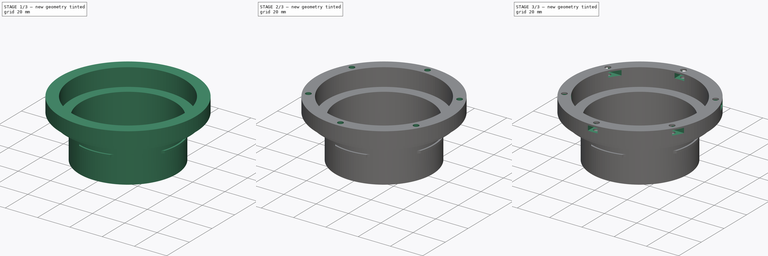
[diagram: build sequence overview — one tinted view per stage of 3, left to right]
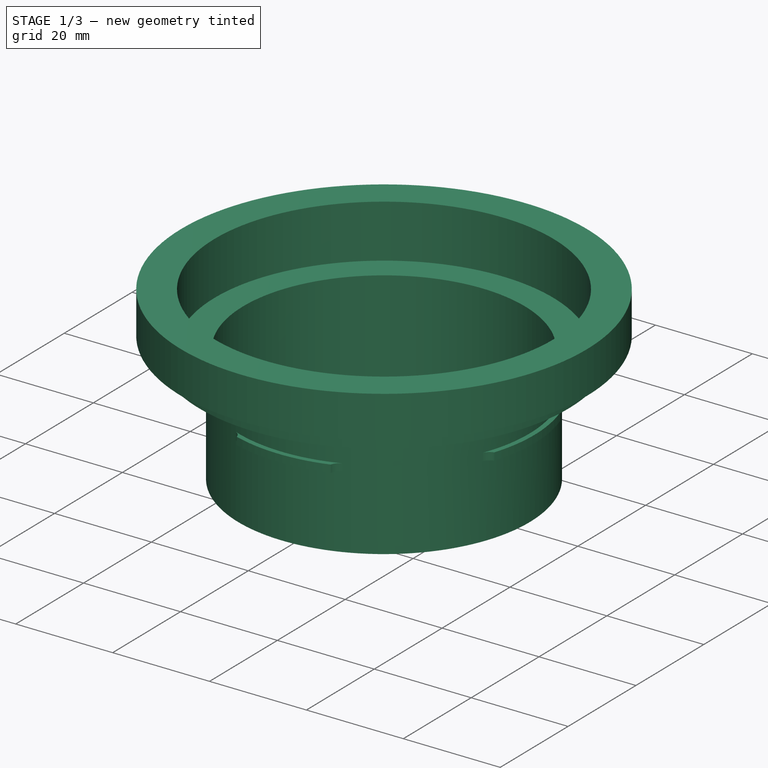
[diagram: stage 1 of 3 — iso view after this stage's code; geometry added in this stage tinted green]
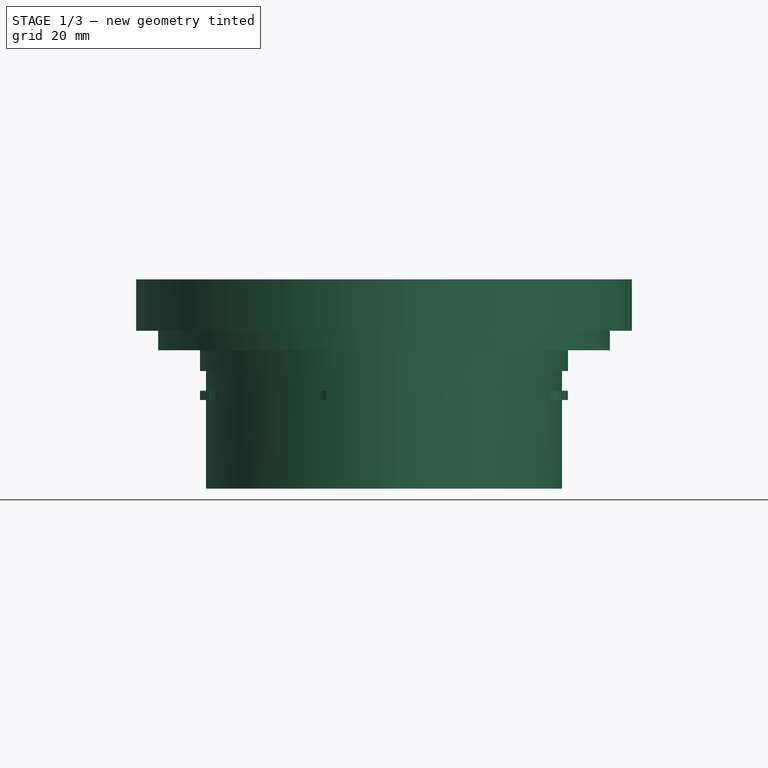
[diagram: stage 1 of 3 — front view after this stage's code; geometry added in this stage tinted green]
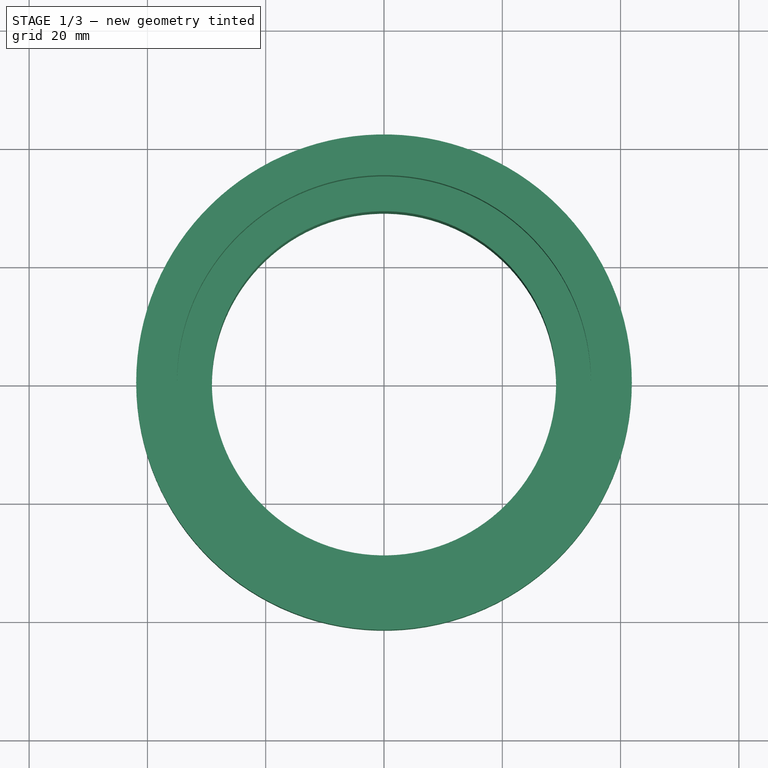
[diagram: stage 1 of 3 — top view after this stage's code; geometry added in this stage tinted green]
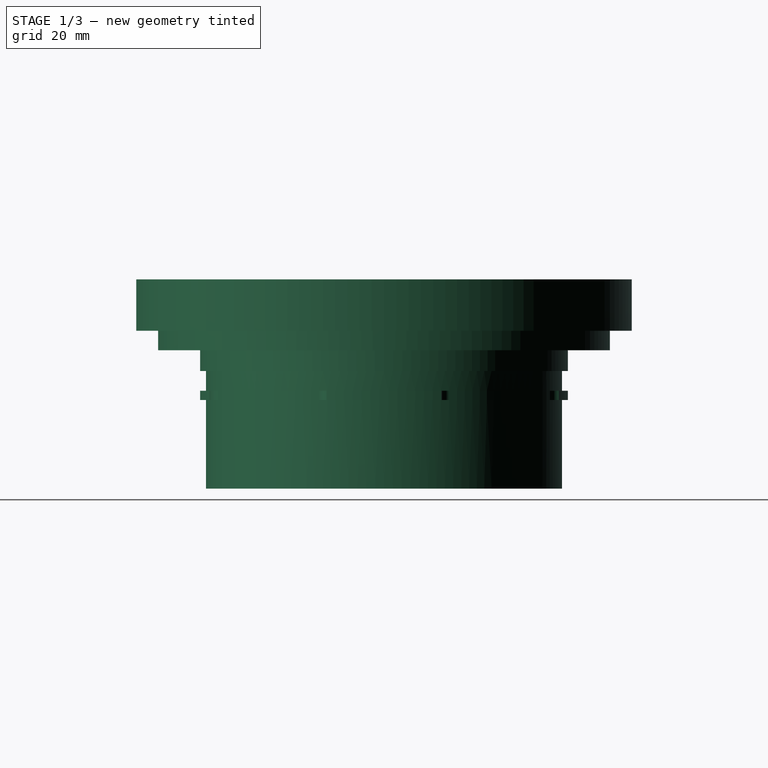
[diagram: stage 1 of 3 — right view after this stage's code; geometry added in this stage tinted green]
FCSTD DOCUMENT  (FreeCAD 1.1R44874 (Git))
Label: Rollei SL66 - Schneider Xenon 125mm F2
License: All rights reserved
LicenseURL: http://en.wikipedia.org/wiki/All_rights_reserved
objects: Sketcher::SketchObject×6, PartDesign::Pocket×4, PartDesign::Revolution×1, App::Point×1, PartDesign::Hole×1, PartDesign::Body×1
note: 31 computed .brp shape members not serialized (recipe doc carries the construction recipe); baked Part::Feature solids carry a one-line shape summary decoded from their .brp

FEATURE [Sketcher::SketchObject] Sketch
  ArcFitTolerance = 0
  AttachmentSupport = -> [XZ_Plane]
  ExternalTypes = [0]
  FullyConstrained = true
  MakeInternals = false
  MapMode = 5
  Placement = pos=(0,0,0) rot=(1,0,0;1.5708rad)
  _ExternalGeoVersion = 0
  sketch-geometry (18):
    g0: LineSegment StartX=-31.1 StartY=0 StartZ=0 EndX=-31.1 EndY=1.55 EndZ=0
    g1: LineSegment StartX=-31.1 StartY=1.55 StartZ=0 EndX=-30.1 EndY=1.55 EndZ=0
    g2: LineSegment StartX=-30.1 StartY=1.55 StartZ=0 EndX=-30.1 EndY=4.9 EndZ=0
    g3: LineSegment StartX=-30.1 StartY=4.9 StartZ=0 EndX=-31.1 EndY=4.9 EndZ=0
    g4: LineSegment StartX=-31.1 StartY=4.9 StartZ=0 EndX=-31.1 EndY=8.4 EndZ=0
    g5: LineSegment StartX=-31.1 StartY=8.4 StartZ=0 EndX=-38.2 EndY=8.4 EndZ=0
    g6: LineSegment StartX=-38.2 StartY=8.4 StartZ=0 EndX=-38.2 EndY=13.4 EndZ=0
    g7: LineSegment StartX=-38.2 StartY=13.4 StartZ=0 EndX=-40.9 EndY=13.4 EndZ=0
    g8: LineSegment StartX=-40.9 StartY=13.4 StartZ=0 EndX=-40.9 EndY=11.7 EndZ=0
    g9: LineSegment StartX=-40.9 StartY=11.7 StartZ=0 EndX=-41.9 EndY=11.7 EndZ=0
    g10: LineSegment StartX=-41.9 StartY=11.7 StartZ=0 EndX=-41.9 EndY=20.4 EndZ=0
    g11: LineSegment StartX=-29.1 StartY=-15 StartZ=0 EndX=-29.1 EndY=9.4 EndZ=0
    g12: LineSegment StartX=-29.1 StartY=9.4 StartZ=0 EndX=-35 EndY=9.4 EndZ=0
    g13: LineSegment StartX=-35 StartY=9.4 StartZ=0 EndX=-35 EndY=20.4 EndZ=0
    g14: LineSegment StartX=-41.9 StartY=20.4 StartZ=0 EndX=-35 EndY=20.4 EndZ=0
    g15: LineSegment StartX=-31.1 StartY=0 StartZ=0 EndX=-30.1 EndY=0 EndZ=0
    g16: LineSegment StartX=-30.1 StartY=0 StartZ=0 EndX=-30.1 EndY=-15 EndZ=0
    g17: LineSegment StartX=-30.1 StartY=-15 StartZ=0 EndX=-29.1 EndY=-15 EndZ=0
  constraints (54):
    c: Coincident(g1,g0)
    c: Coincident(g2,g1)
    c: Coincident(g3,g2)
    c: Coincident(g4,g3)
    c: Coincident(g5,g4)
    c: Coincident(g5,g6)
    c: DistanceX(g0,g1) = 1
    c: DistanceY(g0,g0) = 1.55
    c: DistanceY(g1,g2) = 3.35
    c: Vertical(g2)
    c: Vertical(g0)
    c: Vertical(g4)
    c: Horizontal(g1)
    c: Equal(g3,g1)
    c: Horizontal(g5)
    c: DistanceX(g5,g4) = 7.1
    c: Vertical(g6)
    c: DistanceY(g5,g6) = 5
    c: Horizontal(g3)
    c: DistanceY(g3,g4) = 3.5
    c: DistanceX(g1,g-1) = 30.1
    c: Coincident(g7,g6)
    c: Horizontal(g7)
    c: Coincident(g8,g7)
    c: Vertical(g8)
    c: Coincident(g9,g8)
    c: Horizontal(g9)
    c: Vertical(g10)
    c: Coincident(g9,g10)
    c: DistanceX(g9,g9) = 1
    c: DistanceX(g7,g7) = 2.7
    c: DistanceY(g5,g8) = 3.3
    c: DistanceY(g7,g10) = 7
    c: DistanceX(g11,g-1) = 29.1
    c: Vertical(g11)
    c: Coincident(g12,g11)
    c: Horizontal(g12)
    c: Vertical(g13)
    c: DistanceY(g4,g11) = 1
    c: Coincident(g12,g13)
    c: DistanceX(g13,g-1) = 35
    c: Coincident(g14,g10)
    c: Horizontal(g14)
    c: Coincident(g14,g13)
    c: Coincident(g15,g0)
    c: PointOnObject(g15,g-1)
    c: Horizontal(g15)
    c: Vertical(g15,g1)
    c: Coincident(g16,g15)
    c: Vertical(g16)
    c: Coincident(g17,g16)
    c: Horizontal(g17)
    c: Coincident(g17,g11)
    c: DistanceY(g16,g16) = 15
FEATURE [PartDesign::Revolution] Revolution
  Angle = 360
  Angle2 = 60
  Axis = (0,2e-16,1)
  Base = (0,0,0)
  FuseOrder = 1
  Placement = pos=(0,0,0) rot=(1,0,0;1.5708rad)
  Profile = -> Sketch
  ReferenceAxis = -> Sketch [V_Axis]
  Suppressed = false
  Type = 0
FEATURE [Sketcher::SketchObject] Sketch001
  ArcFitTolerance = 0
  AttachmentSupport = -> [Revolution]
  ExternalGeometry = -> [Revolution]
  ExternalTypes = [0]
  FullyConstrained = true
  MakeInternals = false
  MapMode = 5
  Placement = pos=(0,0,0) rot=(1,0,0;3.14159rad)
  _ExternalGeoVersion = 0
  sketch-geometry (16):
    g0: ArcOfCircle CenterX=11.9 CenterY=30.0998 CenterZ=0 NormalX=0 NormalY=0 NormalZ=1 AngleXU=0 Radius=2.268 StartAngle=3.38709 EndAngle=4.30433
    g1: ArcOfCircle CenterX=30.0998 CenterY=11.9 CenterZ=0 NormalX=0 NormalY=0 NormalZ=1 AngleXU=0 Radius=2.268 StartAngle=3.54965 EndAngle=4.46689
    g2: ArcOfCircle CenterX=0 CenterY=0 CenterZ=0 NormalX=0 NormalY=0 NormalZ=1 AngleXU=0 Radius=30.1 StartAngle=0.374115 EndAngle=1.19668
    g3: ArcOfCircle CenterX=0 CenterY=0 CenterZ=0 NormalX=0 NormalY=0 NormalZ=1 AngleXU=0 Radius=31.1 StartAngle=0.317189 EndAngle=1.25361
    g4: ArcOfCircle CenterX=0 CenterY=0 CenterZ=0 NormalX=0 NormalY=0 NormalZ=1 AngleXU=0 Radius=30.1 StartAngle=1.94491 EndAngle=2.76748
    g5: ArcOfCircle CenterX=0 CenterY=0 CenterZ=0 NormalX=0 NormalY=0 NormalZ=1 AngleXU=0 Radius=31.1 StartAngle=1.88799 EndAngle=2.8244
    g6: ArcOfCircle CenterX=-30.0998 CenterY=11.9 CenterZ=0 NormalX=0 NormalY=0 NormalZ=1 AngleXU=0 Radius=2.268 StartAngle=4.95789 EndAngle=5.87513
    g7: ArcOfCircle CenterX=-11.9 CenterY=30.0998 CenterZ=0 NormalX=0 NormalY=0 NormalZ=1 AngleXU=0 Radius=2.268 StartAngle=5.12044 EndAngle=6.03769
    g8: ArcOfCircle CenterX=0 CenterY=0 CenterZ=0 NormalX=0 NormalY=0 NormalZ=1 AngleXU=0 Radius=30.1 StartAngle=3.51571 EndAngle=4.33827
    g9: ArcOfCircle CenterX=0 CenterY=0 CenterZ=0 NormalX=0 NormalY=0 NormalZ=1 AngleXU=0 Radius=31.1 StartAngle=3.45878 EndAngle=4.3952
    g10: ArcOfCircle CenterX=-11.9 CenterY=-30.0998 CenterZ=0 NormalX=0 NormalY=0 NormalZ=1 AngleXU=0 Radius=2.268 StartAngle=0.245497 EndAngle=1.16274
    g11: ArcOfCircle CenterX=-30.0998 CenterY=-11.9 CenterZ=0 NormalX=0 NormalY=0 NormalZ=1 AngleXU=0 Radius=2.268 StartAngle=0.408055 EndAngle=1.3253
    g12: ArcOfCircle CenterX=0 CenterY=0 CenterZ=0 NormalX=0 NormalY=0 NormalZ=1 AngleXU=0 Radius=30.1 StartAngle=5.0865 EndAngle=5.90907
    g13: ArcOfCircle CenterX=0 CenterY=0 CenterZ=0 NormalX=0 NormalY=0 NormalZ=1 AngleXU=0 Radius=31.1 StartAngle=5.02958 EndAngle=5.966
    g14: ArcOfCircle CenterX=11.9 CenterY=-30.0998 CenterZ=0 NormalX=0 NormalY=0 NormalZ=1 AngleXU=0 Radius=2.268 StartAngle=1.97885 EndAngle=2.8961
    g15: ArcOfCircle CenterX=30.0998 CenterY=-11.9 CenterZ=0 NormalX=0 NormalY=0 NormalZ=1 AngleXU=0 Radius=2.268 StartAngle=1.81629 EndAngle=2.73354
  constraints (44):
    c: DistanceX(g-1,g0) = 9.7
    c: DistanceX(g-1,g0) = 11
    c: DistanceX(g-1,g0) = 11.9
    c: PointOnObject(g1,g-3)
    c: DistanceY(g-1,g1) = 9.7
    c: DistanceY(g-1,g1) = 11
    c: DistanceY(g-1,g1) = 11.9
    c: Coincident(g2,g0)
    c: Coincident(g2,g1)
    c: Coincident(g3,g0)
    c: Coincident(g3,g1)
    c: Coincident(g3,g2)
    c: PointOnObject(g0,g-4)
    c: Coincident(g4,g7)
    c: Coincident(g4,g6)
    c: Coincident(g5,g7)
    c: Coincident(g5,g6)
    c: Coincident(g5,g4)
    c: Coincident(g12,g14)
    c: Coincident(g12,g15)
    c: Coincident(g13,g14)
    c: Coincident(g13,g15)
    c: Coincident(g13,g12)
    c: Coincident(g8,g10)
    c: Coincident(g8,g11)
    c: Coincident(g9,g10)
    c: Coincident(g9,g11)
    c: Coincident(g9,g8)
    c: Symmetric(g0,g7,g-2)
    c: Symmetric(g5,g0,g-2)
    c: Symmetric(g1,g6,g-2)
    c: Symmetric(g4,g1,g-2)
    c: Symmetric(g15,g1,g-1)
    c: Symmetric(g12,g1,g-1)
    c: Symmetric(g9,g5,g-1)
    c: Symmetric(g10,g7,g-1)
    c: Symmetric(g9,g13,g-2)
    c: Symmetric(g10,g14,g-2)
    c: Symmetric(g11,g15,g-2)
    c: Symmetric(g8,g12,g-2)
    c: Coincident(g2,g4)
    c: Coincident(g2,g8)
    c: Coincident(g2,g12)
    c: Coincident(g2,g-4)
FEATURE [PartDesign::Pocket] Pocket  label="cut outs first ring"
  BaseFeature = -> Revolution
  Direction = (0,0,1)
  Length = 1.55
  Length2 = 100
  Placement = pos=(0,0,0) rot=(1,0,0;1.5708rad)
  Profile = -> Sketch001
  SideType = 0
  Suppressed = false
  Type = 0
  Type2 = 0
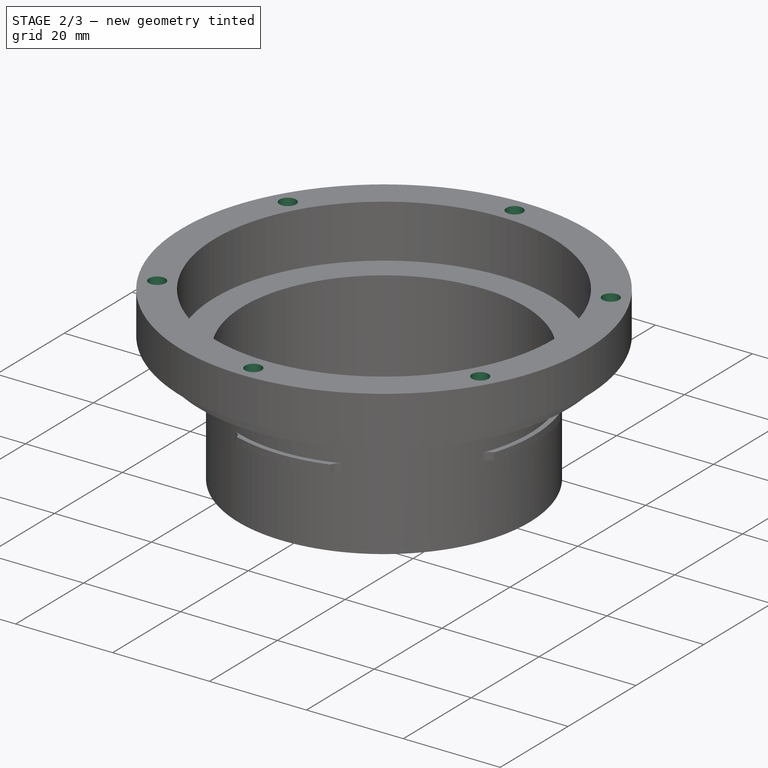
[diagram: stage 2 of 3 — iso view after this stage's code; geometry added in this stage tinted green]
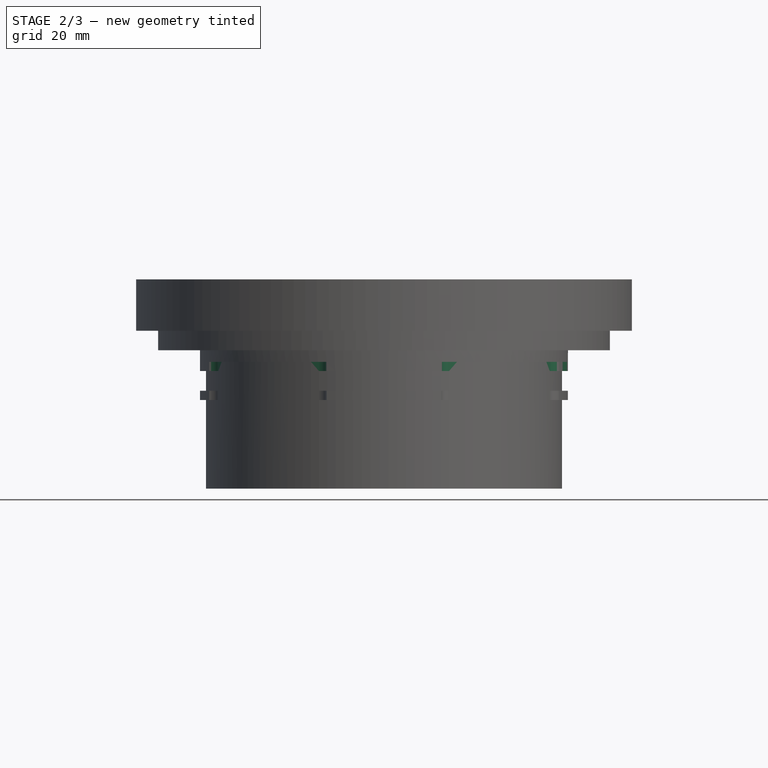
[diagram: stage 2 of 3 — front view after this stage's code; geometry added in this stage tinted green]
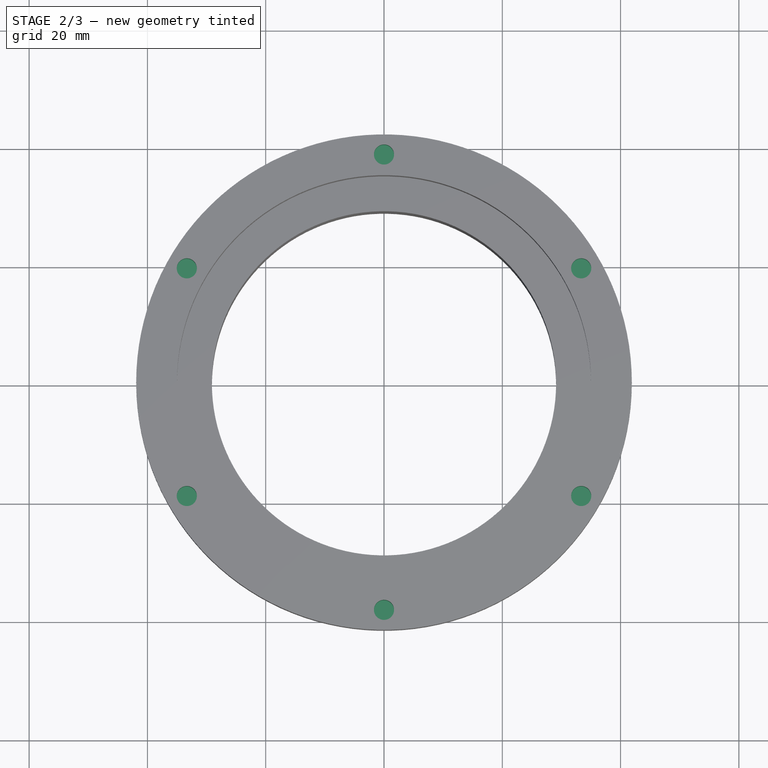
[diagram: stage 2 of 3 — top view after this stage's code; geometry added in this stage tinted green]
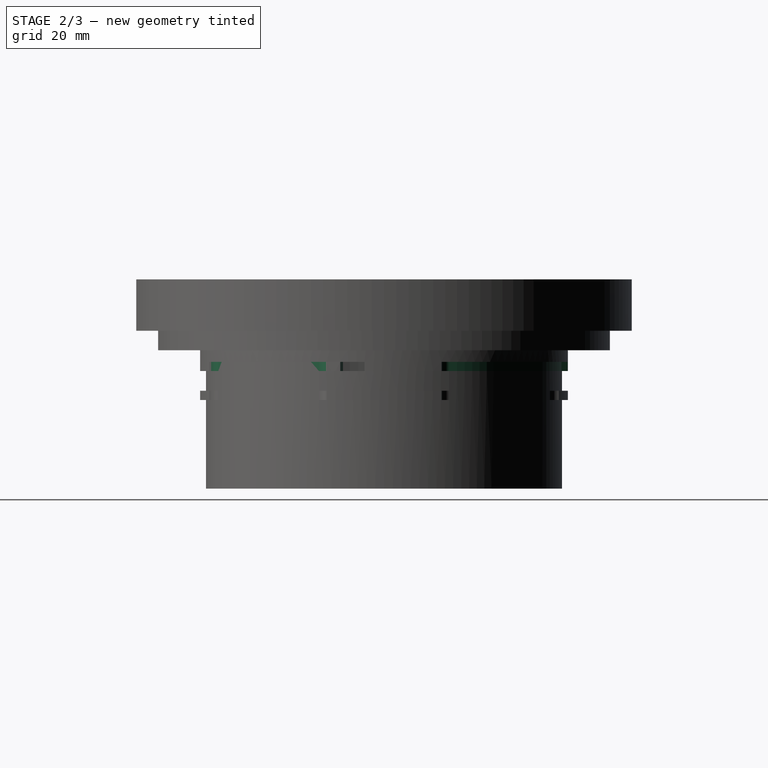
[diagram: stage 2 of 3 — right view after this stage's code; geometry added in this stage tinted green]
FEATURE [Sketcher::SketchObject] Sketch002
  ArcFitTolerance = 0
  AttachmentSupport = -> [Pocket]
  ExternalGeometry = -> [Pocket]
  ExternalTypes = [0]
  FullyConstrained = true
  MakeInternals = false
  MapMode = 5
  Placement = pos=(0,1.1e-15,4.9) rot=(1,0,0;3.14159rad)
  _ExternalGeoVersion = 0
  sketch-geometry (20):
    g0: ArcOfCircle CenterX=-2.4e-15 CenterY=-6.6e-15 CenterZ=0 NormalX=0 NormalY=0 NormalZ=1 AngleXU=0 Radius=30.1 StartAngle=0.374115 EndAngle=1.19668
    g1: ArcOfCircle CenterX=30.0998 CenterY=11.9 CenterZ=0 NormalX=0 NormalY=0 NormalZ=1 AngleXU=0 Radius=2.268 StartAngle=3.54965 EndAngle=4.46689
    g2: ArcOfCircle CenterX=11.9 CenterY=30.0998 CenterZ=0 NormalX=0 NormalY=0 NormalZ=1 AngleXU=0 Radius=2.268 StartAngle=3.38709 EndAngle=4.30433
    g3: ArcOfCircle CenterX=-2.4e-15 CenterY=-6.6e-15 CenterZ=0 NormalX=0 NormalY=0 NormalZ=1 AngleXU=0 Radius=31.1 StartAngle=0.317189 EndAngle=1.25361
    g4: ArcOfCircle CenterX=-2.4e-15 CenterY=-6.6e-15 CenterZ=0 NormalX=0 NormalY=0 NormalZ=1 AngleXU=0 Radius=31.1 StartAngle=0.106309 EndAngle=0.240247
    g5: LineSegment StartX=30.2068 StartY=7.4 StartZ=0 EndX=27.9728 EndY=6.85273 EndZ=0
    g6: LineSegment StartX=30.9244 StartY=3.3 StartZ=0 EndX=28.6374 EndY=3.05595 EndZ=0
    g7: LineSegment StartX=28.6374 StartY=3.05595 StartZ=0 EndX=27.9728 EndY=6.85273 EndZ=0
    g8: ArcOfCircle CenterX=30.0998 CenterY=-11.9 CenterZ=0 NormalX=0 NormalY=0 NormalZ=1 AngleXU=0 Radius=2.268 StartAngle=1.81629 EndAngle=2.7329
    g9: ArcOfCircle CenterX=-2.4e-15 CenterY=-6.6e-15 CenterZ=0 NormalX=0 NormalY=0 NormalZ=1 AngleXU=0 Radius=30.1 StartAngle=4.79888 EndAngle=5.90912
    g10: ArcOfCircle CenterX=-2.4e-15 CenterY=-6.6e-15 CenterZ=0 NormalX=0 NormalY=0 NormalZ=1 AngleXU=0 Radius=31.1 StartAngle=4.77674 EndAngle=5.966
    g11: LineSegment StartX=2.6 StartY=-29.9875 StartZ=0 EndX=2 EndY=-31.0356 EndZ=0
    g12: ArcOfCircle CenterX=-11.9 CenterY=-30.0998 CenterZ=0 NormalX=0 NormalY=0 NormalZ=1 AngleXU=0 Radius=2.268 StartAngle=0.245497 EndAngle=1.16274
    g13: ArcOfCircle CenterX=-2.4e-15 CenterY=-6.6e-15 CenterZ=0 NormalX=0 NormalY=0 NormalZ=1 AngleXU=0 Radius=30.1 StartAngle=3.51571 EndAngle=4.33827
    g14: ArcOfCircle CenterX=-2.4e-15 CenterY=-6.6e-15 CenterZ=0 NormalX=0 NormalY=0 NormalZ=1 AngleXU=0 Radius=31.1 StartAngle=3.45878 EndAngle=4.3952
    g15: ArcOfCircle CenterX=-30.0998 CenterY=-11.9 CenterZ=0 NormalX=0 NormalY=0 NormalZ=1 AngleXU=0 Radius=2.268 StartAngle=0.408055 EndAngle=1.3253
    g16: ArcOfCircle CenterX=-2.4e-15 CenterY=-6.6e-15 CenterZ=0 NormalX=0 NormalY=0 NormalZ=1 AngleXU=0 Radius=30.1 StartAngle=1.94491 EndAngle=2.76748
    g17: ArcOfCircle CenterX=-2.4e-15 CenterY=-6.6e-15 CenterZ=0 NormalX=0 NormalY=0 NormalZ=1 AngleXU=0 Radius=31.1 StartAngle=1.88799 EndAngle=2.8244
    g18: ArcOfCircle CenterX=-11.9 CenterY=30.0998 CenterZ=0 NormalX=0 NormalY=0 NormalZ=1 AngleXU=0 Radius=2.268 StartAngle=5.12044 EndAngle=6.03769
    g19: ArcOfCircle CenterX=-30.0998 CenterY=11.9 CenterZ=0 NormalX=0 NormalY=0 NormalZ=1 AngleXU=0 Radius=2.268 StartAngle=4.95789 EndAngle=5.87513
  constraints (54):
    c: Coincident(g0,g-3)
    c: Coincident(g0,g-4)
    c: Coincident(g1,g-4)
    c: Coincident(g1,g0)
    c: Coincident(g2,g-3)
    c: Coincident(g2,g0)
    c: Coincident(g3,g2)
    c: Coincident(g3,g1)
    c: Coincident(g0,g3)
    c: Coincident(g4,g0)
    c: Coincident(g5,g4)
    c: Coincident(g6,g4)
    c: Coincident(g7,g5)
    c: Perpendicular(g-11,g5)
    c: Perpendicular(g-11,g6)
    c: Coincident(g7,g6)
    c: Equal(g6,g5)
    c: PointOnObject(g4,g-11)
    c: DistanceY(g4,g1) = 2.3
    c: Coincident(g8,g-5)
    c: Coincident(g8,g-11)
    c: DistanceY(g8,g4) = 13
    c: Coincident(g9,g0)
    c: Coincident(g9,g8)
    c: Coincident(g10,g0)
    c: Coincident(g10,g8)
    c: DistanceX(g-6,g10) = 11.7
    c: DistanceX(g-13,g9) = 13.6
    c: Coincident(g11,g9)
    c: Coincident(g11,g10)
    c: Coincident(g12,g-6)
    c: Coincident(g12,g-6)
    c: Coincident(g13,g0)
    c: Coincident(g13,g12)
    c: Coincident(g13,g-7)
    c: Coincident(g14,g0)
    c: Coincident(g14,g12)
    c: Coincident(g15,g-7)
    c: Coincident(g15,g14)
    c: Coincident(g15,g13)
    c: Coincident(g16,g0)
    c: Coincident(g16,g-8)
    c: Coincident(g16,g-9)
    c: Coincident(g17,g0)
    c: Coincident(g17,g-8)
    c: Coincident(g18,g-9)
    c: Coincident(g18,g17)
    c: Coincident(g18,g16)
    c: Coincident(g19,g-8)
    c: Coincident(g19,g17)
    c: Distance(g4,g6) = 2.3
    c: DistanceX(g8,g8) = 1.53
    c: DistanceX(g2,g0) = 1.3
    c: DistanceY(g17,g19) = 1.3
FEATURE [PartDesign::Pocket] Pocket001  label="cut outs second ring"
  BaseFeature = -> Pocket
  Direction = (0,0,1)
  Length = 1.55
  Length2 = 100
  Placement = pos=(0,0,0) rot=(1,0,0;1.5708rad)
  Profile = -> Sketch002
  SideType = 0
  Suppressed = false
  Type = 0
  Type2 = 0
FEATURE [App::Point] Origin001  label="Origin"
  Role = Origin
FEATURE [Sketcher::SketchObject] Sketch003
  ArcFitTolerance = 1e-06
  AttachmentSupport = -> [Pocket001]
  ExternalTypes = [0]
  FullyConstrained = true
  MakeInternals = false
  MapMode = 5
  Placement = pos=(0,4.5e-15,20.4) rot=(0,0,1;3.14159rad)
  _ExternalGeoVersion = 1
  sketch-geometry (13):
    g0: GeomPoint X=0 Y=-38.5 Z=0
    g1: GeomPoint X=0 Y=38.5 Z=0
    g2: GeomPoint X=33.342 Y=-19.25 Z=0
    g3: GeomPoint X=33.342 Y=19.25 Z=0
    g4: GeomPoint X=-33.342 Y=19.25 Z=0
    g5: GeomPoint X=-33.342 Y=-19.25 Z=0
    g6: Circle [constr] CenterX=0 CenterY=0 CenterZ=0 NormalX=0 NormalY=0 NormalZ=1 AngleXU=0 Radius=38.5
    g7: LineSegment [constr] StartX=-33.342 StartY=19.25 StartZ=0 EndX=0 EndY=38.5 EndZ=0
    g8: LineSegment [constr] StartX=0 StartY=38.5 StartZ=0 EndX=33.342 EndY=19.25 EndZ=0
    g9: LineSegment [constr] StartX=33.342 StartY=19.25 StartZ=0 EndX=33.342 EndY=-19.25 EndZ=0
    g10: LineSegment [constr] StartX=33.342 StartY=-19.25 StartZ=0 EndX=0 EndY=-38.5 EndZ=0
    g11: LineSegment [constr] StartX=0 StartY=-38.5 StartZ=0 EndX=-33.342 EndY=-19.25 EndZ=0
    g12: LineSegment [constr] StartX=-33.342 StartY=-19.25 StartZ=0 EndX=-33.342 EndY=19.25 EndZ=0
  constraints (26):
    c: PointOnObject(g0,g-2)
    c: PointOnObject(g1,g-2)
    c: Coincident(g6,g-1)
    c: PointOnObject(g1,g6)
    c: PointOnObject(g3,g6)
    c: PointOnObject(g2,g6)
    c: PointOnObject(g0,g6)
    c: PointOnObject(g5,g6)
    c: PointOnObject(g4,g6)
    c: Coincident(g7,g4)
    c: Coincident(g7,g1)
    c: Coincident(g8,g1)
    c: Coincident(g8,g3)
    c: Coincident(g9,g3)
    c: Coincident(g9,g2)
    c: Coincident(g10,g2)
    c: Coincident(g10,g0)
    c: Coincident(g11,g0)
    c: Coincident(g11,g5)
    c: Coincident(g12,g5)
    c: Coincident(g12,g4)
    c: Equal(g7,g8)
    c: Equal(g8,g9)
    c: Equal(g9,g10)
    c: Equal(g10,g11)
    c: DistanceY(g0,g1) = 77
FEATURE [PartDesign::Hole] Hole
  BaseFeature = -> Pocket001
  BaseProfileType = 7
  CustomThreadClearance = 0
  Depth = 5
  DepthType = 0
  Diameter = 3.4
  DrillForDepth = false
  DrillPoint = 0
  DrillPointAngle = 118
  HoleCutCountersinkAngle = 90
  HoleCutCustomValues = false
  HoleCutDepth = 0
  HoleCutDiameter = 0
  HoleCutType = 0
  ModelThread = false
  Placement = pos=(0,0,0) rot=(1,0,0;1.5708rad)
  Profile = -> Sketch003
  Refine = true
  Suppressed = false
  Tapered = false
  TaperedAngle = 90
  ThreadClass = 0
  ThreadDepth = 5
  ThreadDepthType = 0
  ThreadDiameter = 3
  ThreadDirection = 0
  ThreadFit = 0
  ThreadSize = 9
  ThreadType = 1
  Threaded = false
  UseCustomThreadClearance = false
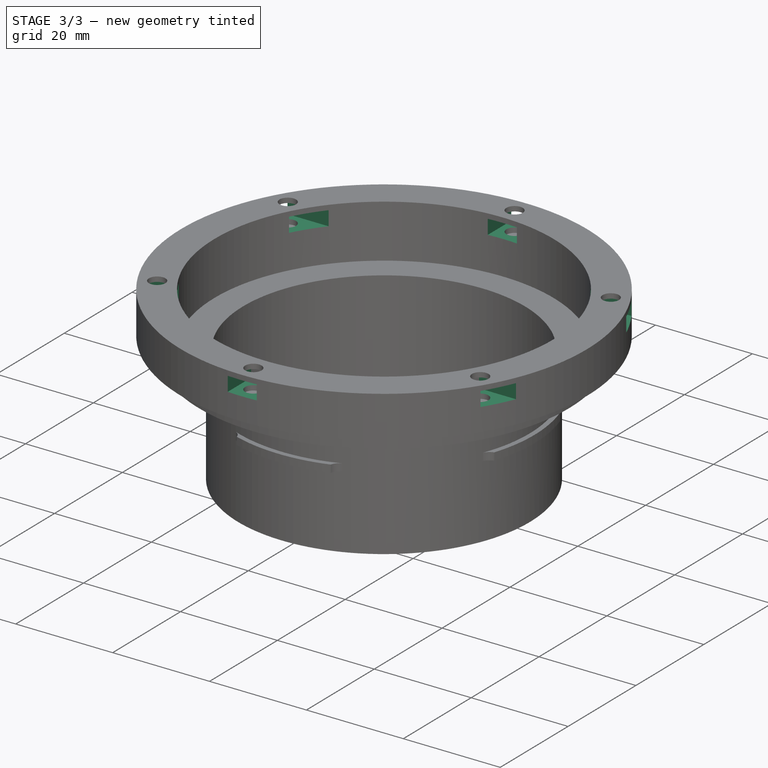
[diagram: stage 3 of 3 — iso view after this stage's code; geometry added in this stage tinted green]
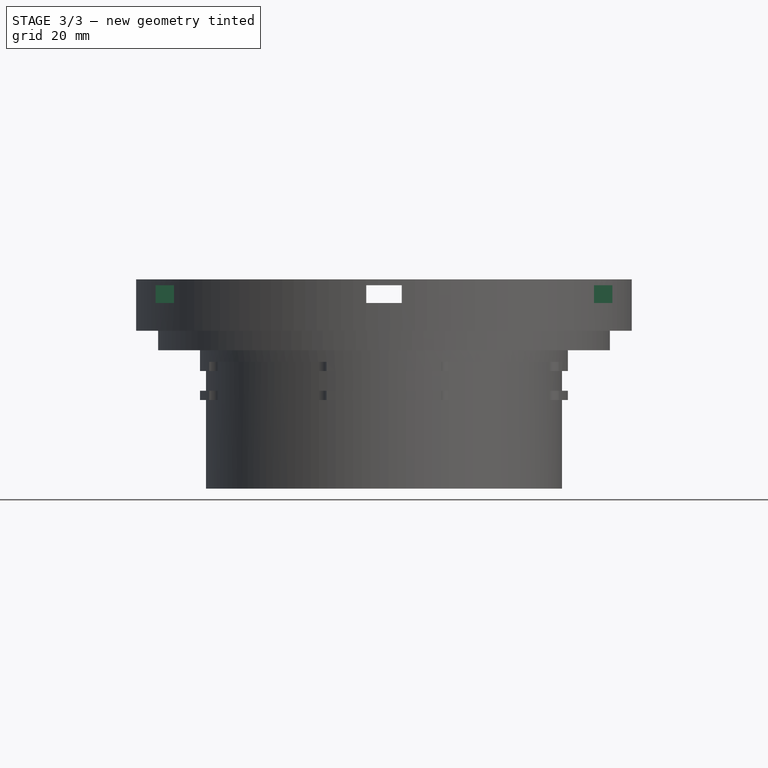
[diagram: stage 3 of 3 — front view after this stage's code; geometry added in this stage tinted green]
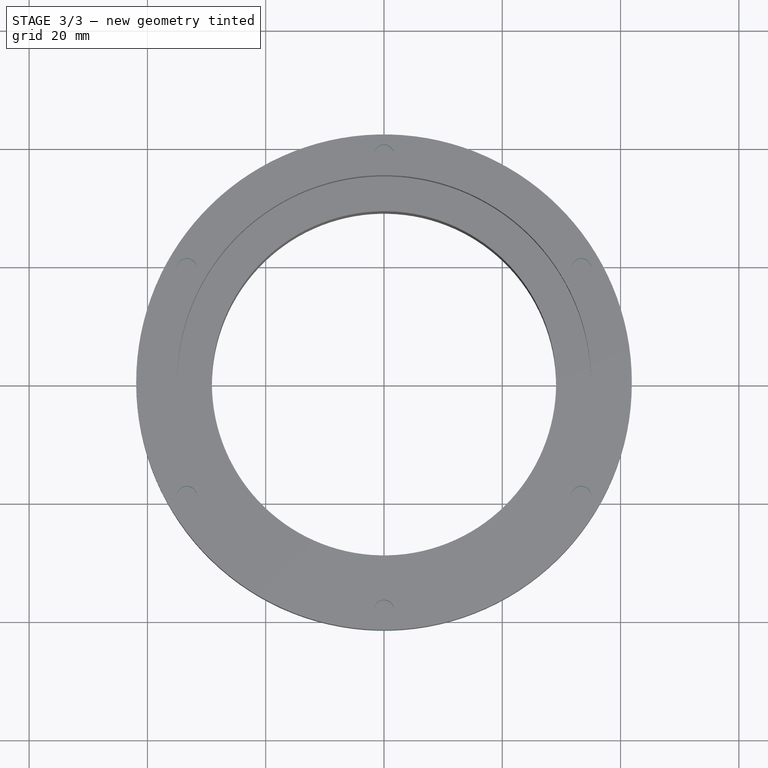
[diagram: stage 3 of 3 — top view after this stage's code; geometry added in this stage tinted green]
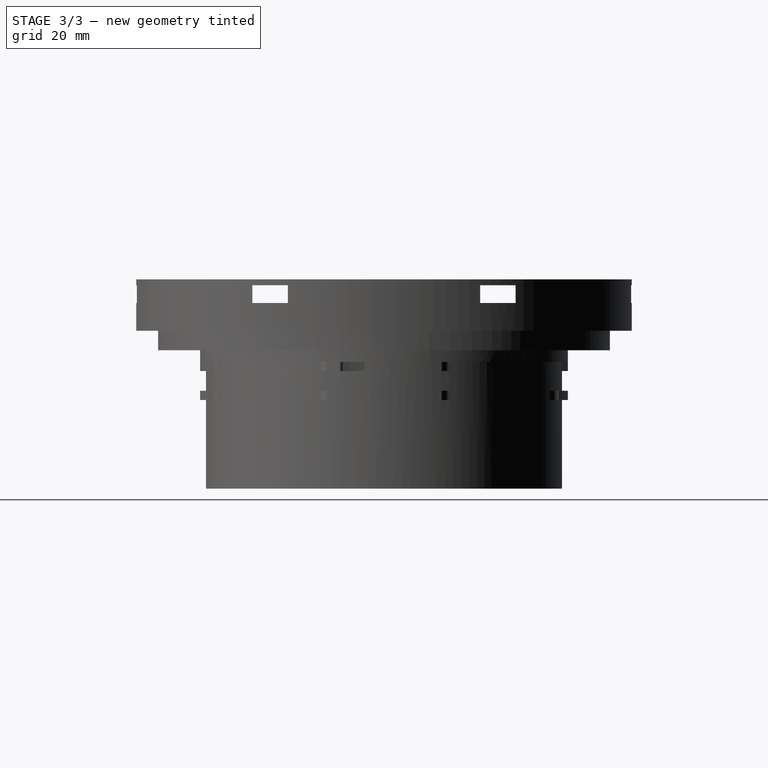
[diagram: stage 3 of 3 — right view after this stage's code; geometry added in this stage tinted green]
FEATURE [Sketcher::SketchObject] Sketch004
  ArcFitTolerance = 1e-06
  AttachmentSupport = -> [Origin]
  ExternalGeometry = -> [Hole]
  ExternalTypes = [0,0,0,0,0]
  FullyConstrained = true
  MakeInternals = false
  MapMode = 5
  Placement = pos=(0,0,0) rot=(0.57735,0.57735,0.57735;2.0944rad)
  _ExternalGeoVersion = 1
  sketch-geometry (12):
    g0: LineSegment StartX=-22.25 StartY=19.4 StartZ=0 EndX=-22.25 EndY=16.4 EndZ=0
    g1: LineSegment StartX=-22.25 StartY=16.4 StartZ=0 EndX=-16.25 EndY=16.4 EndZ=0
    g2: LineSegment StartX=-16.25 StartY=16.4 StartZ=0 EndX=-16.25 EndY=19.4 EndZ=0
    g3: LineSegment StartX=-16.25 StartY=19.4 StartZ=0 EndX=-22.25 EndY=19.4 EndZ=0
    g4: LineSegment StartX=16.25 StartY=19.4 StartZ=0 EndX=16.25 EndY=16.4 EndZ=0
    g5: LineSegment StartX=16.25 StartY=16.4 StartZ=0 EndX=22.25 EndY=16.4 EndZ=0
    g6: LineSegment StartX=22.25 StartY=16.4 StartZ=0 EndX=22.25 EndY=19.4 EndZ=0
    g7: LineSegment StartX=22.25 StartY=19.4 StartZ=0 EndX=16.25 EndY=19.4 EndZ=0
    g8: LineSegment [constr] StartX=-22.25 StartY=19.4 StartZ=0 EndX=-20.95 EndY=20.4 EndZ=0
    g9: LineSegment [constr] StartX=-17.55 StartY=20.4 StartZ=0 EndX=-16.25 EndY=19.4 EndZ=0
    g10: LineSegment [constr] StartX=16.25 StartY=19.4 StartZ=0 EndX=17.55 EndY=20.4 EndZ=0
    g11: LineSegment [constr] StartX=20.95 StartY=20.4 StartZ=0 EndX=22.25 EndY=19.4 EndZ=0
  constraints (32):
    c: Coincident(g0,g1)
    c: Coincident(g1,g2)
    c: Coincident(g2,g3)
    c: Coincident(g3,g0)
    c: Vertical(g0)
    c: Vertical(g2)
    c: Horizontal(g1)
    c: Horizontal(g3)
    c: DistanceX(g1,g1) = 6
    c: DistanceY(g0,g0) = 3
    c: Coincident(g4,g5)
    c: Coincident(g5,g6)
    c: Coincident(g6,g7)
    c: Coincident(g7,g4)
    c: Vertical(g4)
    c: Vertical(g6)
    c: Horizontal(g5)
    c: Horizontal(g7)
    c: DistanceX(g5,g5) = 6
    c: DistanceY(g4,g4) = 3
    c: Coincident(g8,g0)
    c: Coincident(g8,g-5)
    c: Coincident(g9,g-5)
    c: Coincident(g9,g2)
    c: Coincident(g10,g4)
    c: Coincident(g10,g-4)
    c: Coincident(g11,g-4)
    c: Coincident(g11,g6)
    c: Equal(g8,g9)
    c: Equal(g9,g10)
    c: Equal(g10,g11)
    c: DistanceY(g0,g8) = 1
FEATURE [PartDesign::Pocket] Pocket002
  BaseFeature = -> Hole
  Direction = (-1,0,0)
  Length = 5
  Length2 = 5
  Placement = pos=(0,0,0) rot=(1,0,0;1.5708rad)
  Profile = -> Sketch004
  ReferenceAxis = -> Sketch004 [N_Axis]
  Refine = true
  SideType = 2
  Suppressed = false
  Type = 1
  Type2 = 0
FEATURE [Sketcher::SketchObject] Sketch005
  ArcFitTolerance = 1e-06
  AttachmentSupport = -> [Origin]
  ExternalGeometry = -> [Pocket002]
  ExternalTypes = [0]
  FullyConstrained = true
  MakeInternals = false
  MapMode = 5
  Placement = pos=(0,0,0) rot=(1,0,0;1.5708rad)
  _ExternalGeoVersion = 1
  sketch-geometry (6):
    g0: LineSegment StartX=-3 StartY=19.4 StartZ=0 EndX=-3 EndY=16.4 EndZ=0
    g1: LineSegment StartX=-3 StartY=16.4 StartZ=0 EndX=3 EndY=16.4 EndZ=0
    g2: LineSegment StartX=3 StartY=16.4 StartZ=0 EndX=3 EndY=19.4 EndZ=0
    g3: LineSegment StartX=3 StartY=19.4 StartZ=0 EndX=-3 EndY=19.4 EndZ=0
    g4: LineSegment [constr] StartX=-3 StartY=19.4 StartZ=0 EndX=-1.7 EndY=20.4 EndZ=0
    g5: LineSegment [constr] StartX=1.7 StartY=20.4 StartZ=0 EndX=3 EndY=19.4 EndZ=0
  constraints (16):
    c: Coincident(g0,g1)
    c: Coincident(g1,g2)
    c: Coincident(g2,g3)
    c: Coincident(g3,g0)
    c: Vertical(g0)
    c: Vertical(g2)
    c: Horizontal(g1)
    c: Horizontal(g3)
    c: DistanceY(g0,g0) = 3
    c: DistanceX(g1,g1) = 6
    c: Coincident(g4,g0)
    c: Coincident(g4,g-3)
    c: Coincident(g5,g-3)
    c: Coincident(g5,g2)
    c: Equal(g5,g4)
    c: DistanceY(g0,g4) = 1
FEATURE [PartDesign::Pocket] Pocket003
  BaseFeature = -> Pocket002
  Direction = (0,1,-2e-16)
  Length = 5
  Length2 = 5
  Placement = pos=(0,0,0) rot=(1,0,0;1.5708rad)
  Profile = -> Sketch005
  ReferenceAxis = -> Sketch005 [N_Axis]
  Refine = true
  SideType = 2
  Suppressed = false
  Type = 1
  Type2 = 0
FEATURE [PartDesign::Body] Body  label="lens bayonett"
  AllowCompound = false
  Group = -> [Sketch,Revolution,Sketch001,Pocket,Sketch002,Pocket001,Sketch003,Hole,Sketch004,Pocket002,Sketch005,Pocket003]
  Origin = -> Origin
  Tip = -> Pocket003
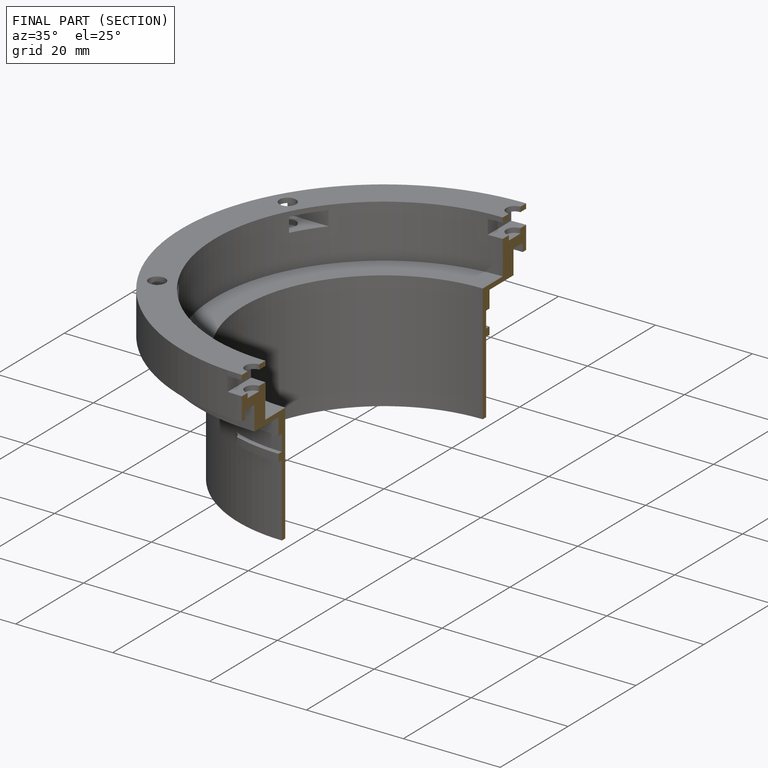
[diagram: finished part — half-section view (interior)]
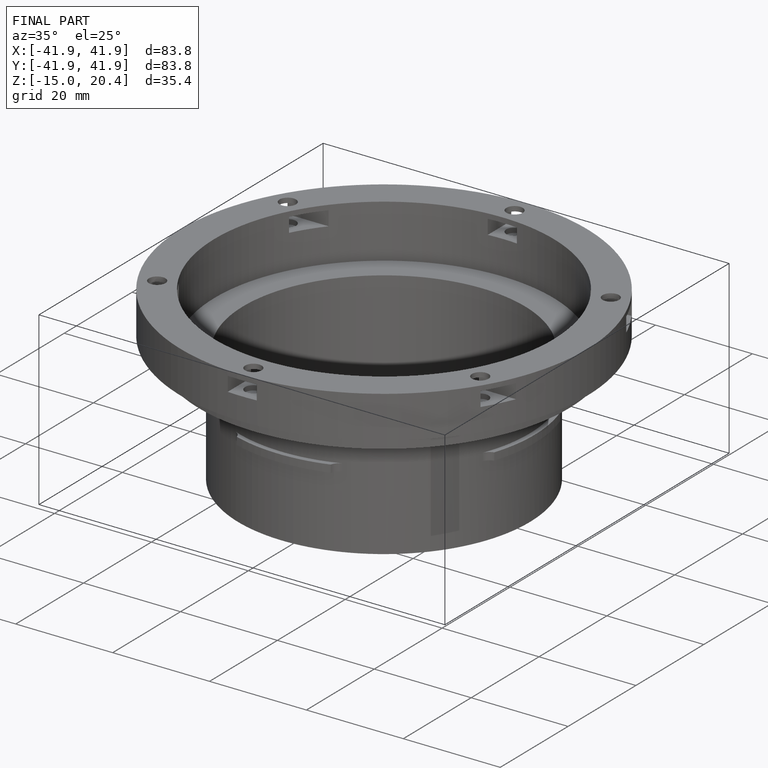
[diagram: finished part — iso view with bounding-box wireframe]
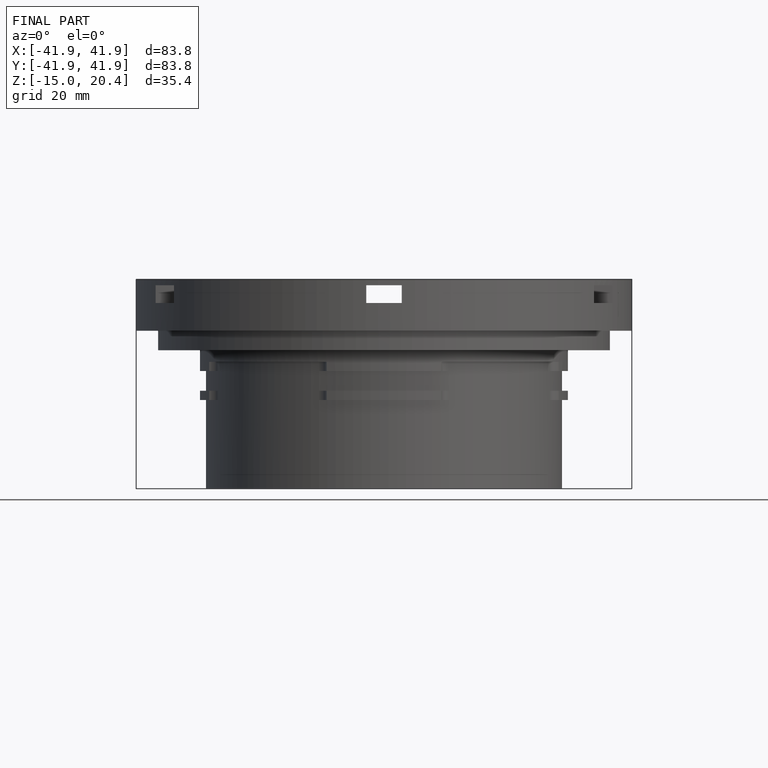
[diagram: finished part — front view with bounding-box wireframe]
